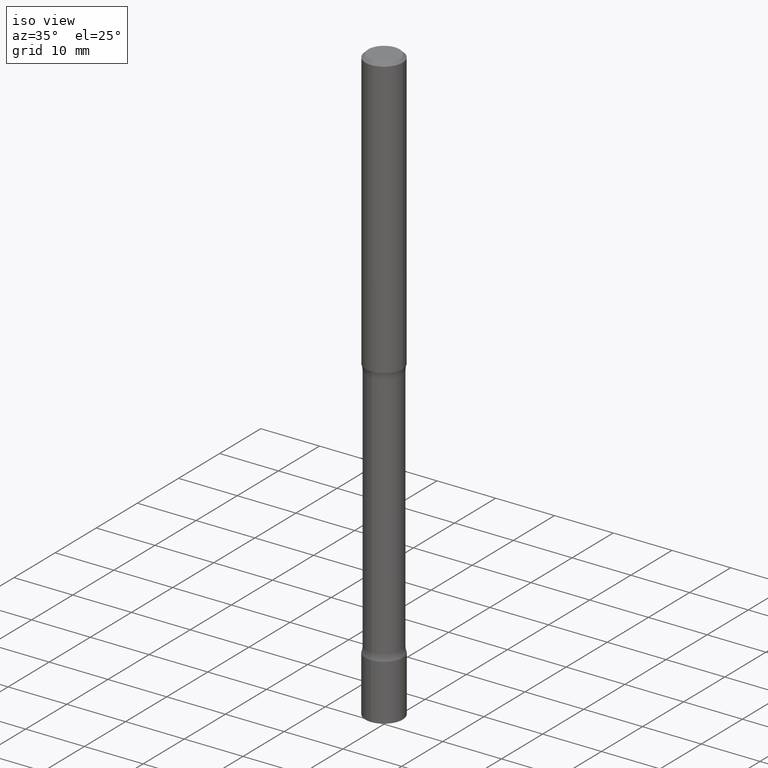
[diagram: clean part render]
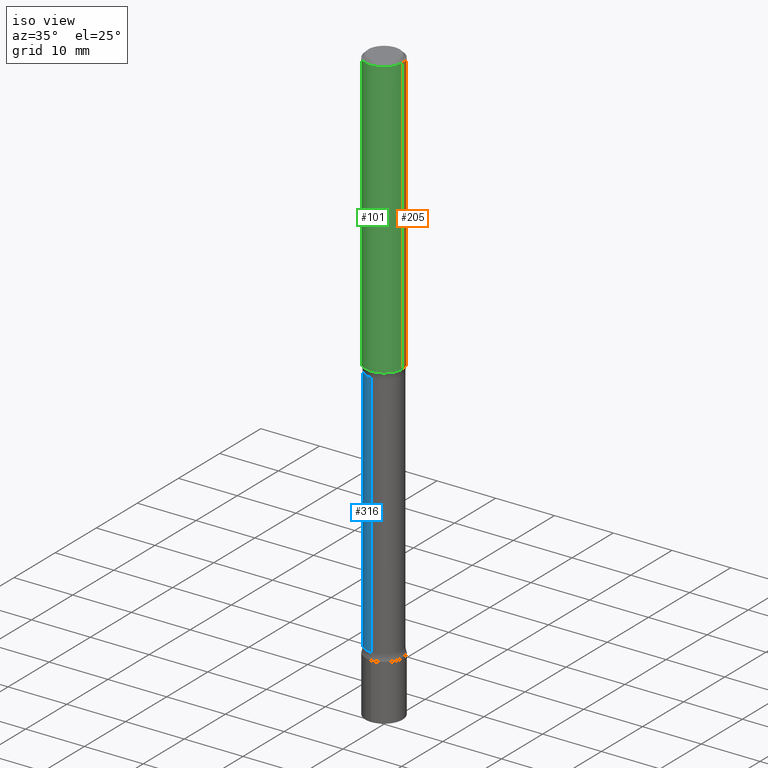
[diagram: same view with three faces highlighted in distinct colors, each labeled with its STEP entity id]
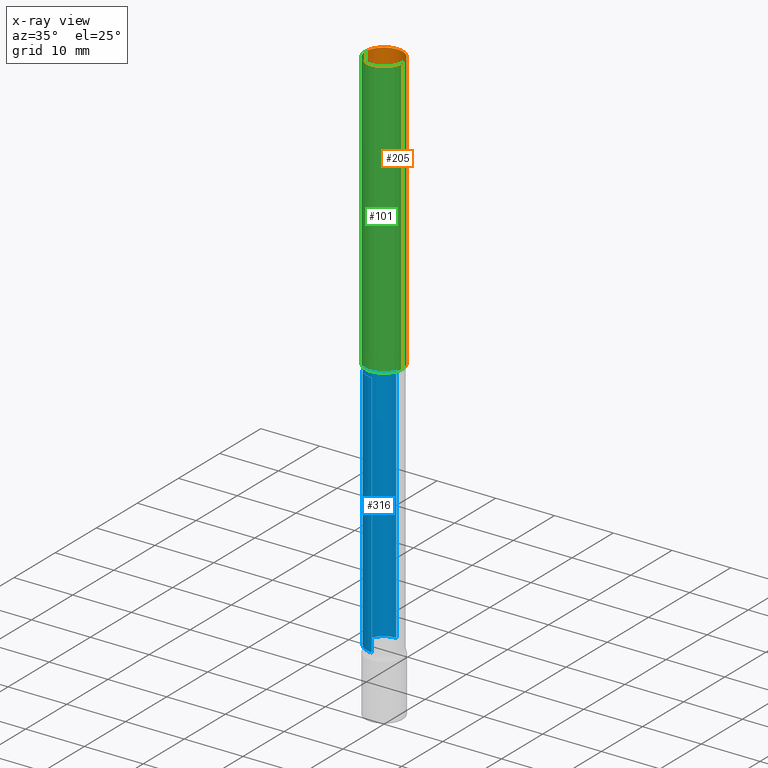
[diagram: x-ray of the same camera — body ghosted, the three highlighted faces saturated]
A machine part, iso view with three faces highlighted in distinct colors.
The next image is the same camera in x-ray (body ghosted, the three faces saturated) — at least one of them is partly hidden behind the body in this view.
Their STEP definitions:

[orange] entity #205 — the highlighted cylindrical surface (edge-blend (fillet) strip) has radius 3.175 mm, axis along (-0, 0, 1).
#10 = EDGE_LOOP ( 'NONE', ( #320, #204, #372, #96 ) ) ;
#17 = CARTESIAN_POINT ( 'NONE',  ( 4.890937612370273159E-31, -6.982962677686291609E-17, -0.02000000000000000042 ) ) ;
#28 = DIRECTION ( 'NONE',  ( -2.445468806185136877E-29, 3.491481338843145188E-15, 1.000000000000000000 ) ) ;
#35 = CARTESIAN_POINT ( 'NONE',  ( 0.1249999999999999029, -7.419397845041682046E-15, -1.875000000000000000 ) ) ;
#36 = EDGE_CURVE ( 'NONE', #236, #326, #209, .T. ) ;
#44 = VECTOR ( 'NONE', #28, 39.37007874015748143 ) ;
#49 = DIRECTION ( 'NONE',  ( 1.000000000000000000, -6.982962677686268288E-15, 0.000000000000000000 ) ) ;
#53 = CARTESIAN_POINT ( 'NONE',  ( -0.1249999999999995559, 8.030407079339172796E-16, -0.02000000000000000042 ) ) ;
#89 = EDGE_CURVE ( 'NONE', #129, #343, #485, .T. ) ;
#96 = ORIENTED_EDGE ( 'NONE', *, *, #36, .F. ) ;
#111 = AXIS2_PLACEMENT_3D ( 'NONE', #17, #281, #234 ) ;
#129 = VERTEX_POINT ( 'NONE', #300 ) ;
#181 = FACE_OUTER_BOUND ( 'NONE', #10, .T. ) ;
#183 = CARTESIAN_POINT ( 'NONE',  ( 0.000000000000000000, 0.000000000000000000, 0.000000000000000000 ) ) ;
#198 = CARTESIAN_POINT ( 'NONE',  ( -0.1249999999999997224, 8.881784197001232602E-16, -6.148668862818618915E-30 ) ) ;
#204 = ORIENTED_EDGE ( 'NONE', *, *, #89, .T. ) ;
#205 = ADVANCED_FACE ( 'NONE', ( #181 ), #465, .T. ) ;
#208 = CIRCLE ( 'NONE', #356, 0.1249999999999999029 ) ;
#209 = LINE ( 'NONE', #371, #44 ) ;
#230 = CARTESIAN_POINT ( 'NONE',  ( 0.1249999999999995559, -9.273918764983013908E-16, -0.02000000000000000042 ) ) ;
#234 = DIRECTION ( 'NONE',  ( 1.000000000000000000, -6.982962677686265922E-15, 0.000000000000000000 ) ) ;
#236 = VERTEX_POINT ( 'NONE', #35 ) ;
#250 = DIRECTION ( 'NONE',  ( -2.445468806185136597E-29, 3.491481338843145583E-15, 1.000000000000000000 ) ) ;
#257 = AXIS2_PLACEMENT_3D ( 'NONE', #183, #250, #508 ) ;
#281 = DIRECTION ( 'NONE',  ( -2.445468806185136597E-29, 3.491481338843145583E-15, 1.000000000000000000 ) ) ;
#295 = EDGE_CURVE ( 'NONE', #236, #129, #208, .T. ) ;
#300 = CARTESIAN_POINT ( 'NONE',  ( -0.1249999999999999029, -2.420000148853752220E-15, -1.875000000000000000 ) ) ;
#320 = ORIENTED_EDGE ( 'NONE', *, *, #295, .T. ) ;
#326 = VERTEX_POINT ( 'NONE', #230 ) ;
#343 = VERTEX_POINT ( 'NONE', #53 ) ;
#356 = AXIS2_PLACEMENT_3D ( 'NONE', #400, #396, #49 ) ;
#363 = DIRECTION ( 'NONE',  ( -2.445468806185136877E-29, 3.491481338843145188E-15, 1.000000000000000000 ) ) ;
#371 = CARTESIAN_POINT ( 'NONE',  ( 0.1249999999999997224, -8.728703347107813667E-16, 6.095220969744905728E-30 ) ) ;
#372 = ORIENTED_EDGE ( 'NONE', *, *, #501, .F. ) ;
#394 = VECTOR ( 'NONE', #363, 39.37007874015748143 ) ;
#396 = DIRECTION ( 'NONE',  ( -2.445468806185136597E-29, 3.491481338843145583E-15, 1.000000000000000000 ) ) ;
#400 = CARTESIAN_POINT ( 'NONE',  ( 4.585254011597131119E-29, -6.546527510330898707E-15, -1.875000000000000000 ) ) ;
#434 = CIRCLE ( 'NONE', #111, 0.1249999999999995559 ) ;
#465 = CYLINDRICAL_SURFACE ( 'NONE', #257, 0.1249999999999997224 ) ;
#485 = LINE ( 'NONE', #198, #394 ) ;
#501 = EDGE_CURVE ( 'NONE', #326, #343, #434, .T. ) ;
#508 = DIRECTION ( 'NONE',  ( 1.000000000000000000, -6.982962677686266711E-15, 4.876176775795935232E-29 ) ) ;

[blue] entity #316 — the highlighted cylindrical surface (edge-blend (fillet) strip) has radius 2.9845 mm, axis along (0, -0, -1).
#9 = CARTESIAN_POINT ( 'NONE',  ( 9.513849917074038221E-29, -1.434975285100415564E-14, -4.000000000000000000 ) ) ;
#24 = ORIENTED_EDGE ( 'NONE', *, *, #325, .T. ) ;
#34 = AXIS2_PLACEMENT_3D ( 'NONE', #361, #191, #351 ) ;
#43 = CARTESIAN_POINT ( 'NONE',  ( -8.061085147380546628E-16, -0.1175000000000136074, -3.999999999999999556 ) ) ;
#61 = ORIENTED_EDGE ( 'NONE', *, *, #472, .F. ) ;
#74 = DIRECTION ( 'NONE',  ( 6.982962677686265133E-15, 1.000000000000000000, -4.649954031768944672E-15 ) ) ;
#88 = CIRCLE ( 'NONE', #248, 0.1175000000000003542 ) ;
#92 = VERTEX_POINT ( 'NONE', #93 ) ;
#93 = CARTESIAN_POINT ( 'NONE',  ( 8.204981146282264856E-16, 0.1174999999999878642, -3.582353194726920265 ) ) ;
#125 = LINE ( 'NONE', #269, #507 ) ;
#160 = DIRECTION ( 'NONE',  ( 1.759171924570855496E-29, -4.474297534907476675E-15, -1.000000000000000000 ) ) ;
#161 = CIRCLE ( 'NONE', #34, 0.1174999999999981615 ) ;
#162 = FACE_OUTER_BOUND ( 'NONE', #495, .T. ) ;
#187 = VECTOR ( 'NONE', #437, 39.37007874015748143 ) ;
#191 = DIRECTION ( 'NONE',  ( 1.759171924570855496E-29, -4.474297534907476675E-15, -1.000000000000000000 ) ) ;
#248 = AXIS2_PLACEMENT_3D ( 'NONE', #464, #432, #74 ) ;
#261 = VERTEX_POINT ( 'NONE', #502 ) ;
#269 = CARTESIAN_POINT ( 'NONE',  ( 8.204981146282261897E-16, 0.1174999999999849221, -4.000000000000000888 ) ) ;
#270 = VERTEX_POINT ( 'NONE', #431 ) ;
#273 = ORIENTED_EDGE ( 'NONE', *, *, #443, .F. ) ;
#275 = CYLINDRICAL_SURFACE ( 'NONE', #395, 0.1174999999999992578 ) ;
#307 = EDGE_CURVE ( 'NONE', #362, #261, #161, .T. ) ;
#316 = ADVANCED_FACE ( 'NONE', ( #162 ), #275, .T. ) ;
#325 = EDGE_CURVE ( 'NONE', #261, #92, #125, .T. ) ;
#351 = DIRECTION ( 'NONE',  ( 6.982962677686265922E-15, 1.000000000000000000, -4.649954031769031446E-15 ) ) ;
#361 = CARTESIAN_POINT ( 'NONE',  ( 5.850632639870013591E-29, -5.032685085030794996E-15, -1.917646805273080624 ) ) ;
#362 = VERTEX_POINT ( 'NONE', #483 ) ;
#392 = LINE ( 'NONE', #43, #187 ) ;
#395 = AXIS2_PLACEMENT_3D ( 'NONE', #9, #160, #442 ) ;
#431 = CARTESIAN_POINT ( 'NONE',  ( -8.318353822297121609E-16, -0.1175000000000128303, -3.582353194726918932 ) ) ;
#432 = DIRECTION ( 'NONE',  ( 1.759171924570855496E-29, -4.474297534907476675E-15, -1.000000000000000000 ) ) ;
#437 = DIRECTION ( 'NONE',  ( 1.759171924570855496E-29, -4.474297534907476675E-15, -1.000000000000000000 ) ) ;
#442 = DIRECTION ( 'NONE',  ( 6.982962677686266711E-15, 1.000000000000000000, -4.649954031768988059E-15 ) ) ;
#443 = EDGE_CURVE ( 'NONE', #362, #270, #392, .T. ) ;
#444 = DIRECTION ( 'NONE',  ( 1.759171924570855496E-29, -4.474297534907476675E-15, -1.000000000000000000 ) ) ;
#464 = CARTESIAN_POINT ( 'NONE',  ( 8.779137382850924251E-29, -1.248107677970883248E-14, -3.582353194726919821 ) ) ;
#472 = EDGE_CURVE ( 'NONE', #270, #92, #88, .T. ) ;
#478 = ORIENTED_EDGE ( 'NONE', *, *, #307, .T. ) ;
#483 = CARTESIAN_POINT ( 'NONE',  ( -8.318353822297277409E-16, -0.1175000000000032269, -1.917646805273080179 ) ) ;
#495 = EDGE_LOOP ( 'NONE', ( #273, #478, #24, #61 ) ) ;
#502 = CARTESIAN_POINT ( 'NONE',  ( 8.204981146281819149E-16, 0.1174999999999931238, -1.917646805273081290 ) ) ;
#507 = VECTOR ( 'NONE', #444, 39.37007874015748143 ) ;

[green] entity #101 — the highlighted cylindrical surface (edge-blend (fillet) strip) has radius 3.175 mm, axis along (-0, 0, 1).
#28 = DIRECTION ( 'NONE',  ( -2.445468806185136877E-29, 3.491481338843145188E-15, 1.000000000000000000 ) ) ;
#29 = EDGE_CURVE ( 'NONE', #129, #236, #77, .T. ) ;
#35 = CARTESIAN_POINT ( 'NONE',  ( 0.1249999999999999029, -7.419397845041682046E-15, -1.875000000000000000 ) ) ;
#36 = EDGE_CURVE ( 'NONE', #236, #326, #209, .T. ) ;
#44 = VECTOR ( 'NONE', #28, 39.37007874015748143 ) ;
#47 = EDGE_LOOP ( 'NONE', ( #94, #173, #446, #243 ) ) ;
#51 = FACE_OUTER_BOUND ( 'NONE', #47, .T. ) ;
#53 = CARTESIAN_POINT ( 'NONE',  ( -0.1249999999999995559, 8.030407079339172796E-16, -0.02000000000000000042 ) ) ;
#70 = AXIS2_PLACEMENT_3D ( 'NONE', #167, #235, #136 ) ;
#71 = DIRECTION ( 'NONE',  ( -2.445468806185136597E-29, 3.491481338843145583E-15, 1.000000000000000000 ) ) ;
#77 = CIRCLE ( 'NONE', #70, 0.1249999999999999029 ) ;
#89 = EDGE_CURVE ( 'NONE', #129, #343, #485, .T. ) ;
#94 = ORIENTED_EDGE ( 'NONE', *, *, #89, .F. ) ;
#101 = ADVANCED_FACE ( 'NONE', ( #51 ), #271, .T. ) ;
#129 = VERTEX_POINT ( 'NONE', #300 ) ;
#136 = DIRECTION ( 'NONE',  ( 1.000000000000000000, -6.982962677686268288E-15, 0.000000000000000000 ) ) ;
#167 = CARTESIAN_POINT ( 'NONE',  ( 4.585254011597131119E-29, -6.546527510330898707E-15, -1.875000000000000000 ) ) ;
#173 = ORIENTED_EDGE ( 'NONE', *, *, #29, .T. ) ;
#198 = CARTESIAN_POINT ( 'NONE',  ( -0.1249999999999997224, 8.881784197001232602E-16, -6.148668862818618915E-30 ) ) ;
#209 = LINE ( 'NONE', #371, #44 ) ;
#217 = DIRECTION ( 'NONE',  ( 1.000000000000000000, -6.982962677686265922E-15, 0.000000000000000000 ) ) ;
#220 = AXIS2_PLACEMENT_3D ( 'NONE', #252, #71, #217 ) ;
#230 = CARTESIAN_POINT ( 'NONE',  ( 0.1249999999999995559, -9.273918764983013908E-16, -0.02000000000000000042 ) ) ;
#235 = DIRECTION ( 'NONE',  ( -2.445468806185136597E-29, 3.491481338843145583E-15, 1.000000000000000000 ) ) ;
#236 = VERTEX_POINT ( 'NONE', #35 ) ;
#243 = ORIENTED_EDGE ( 'NONE', *, *, #259, .F. ) ;
#252 = CARTESIAN_POINT ( 'NONE',  ( 4.890937612370273159E-31, -6.982962677686291609E-17, -0.02000000000000000042 ) ) ;
#259 = EDGE_CURVE ( 'NONE', #343, #326, #454, .T. ) ;
#271 = CYLINDRICAL_SURFACE ( 'NONE', #296, 0.1249999999999997224 ) ;
#277 = DIRECTION ( 'NONE',  ( 1.000000000000000000, -6.982962677686266711E-15, 4.876176775795935232E-29 ) ) ;
#296 = AXIS2_PLACEMENT_3D ( 'NONE', #321, #368, #277 ) ;
#300 = CARTESIAN_POINT ( 'NONE',  ( -0.1249999999999999029, -2.420000148853752220E-15, -1.875000000000000000 ) ) ;
#321 = CARTESIAN_POINT ( 'NONE',  ( 0.000000000000000000, 0.000000000000000000, 0.000000000000000000 ) ) ;
#326 = VERTEX_POINT ( 'NONE', #230 ) ;
#343 = VERTEX_POINT ( 'NONE', #53 ) ;
#363 = DIRECTION ( 'NONE',  ( -2.445468806185136877E-29, 3.491481338843145188E-15, 1.000000000000000000 ) ) ;
#368 = DIRECTION ( 'NONE',  ( -2.445468806185136597E-29, 3.491481338843145583E-15, 1.000000000000000000 ) ) ;
#371 = CARTESIAN_POINT ( 'NONE',  ( 0.1249999999999997224, -8.728703347107813667E-16, 6.095220969744905728E-30 ) ) ;
#394 = VECTOR ( 'NONE', #363, 39.37007874015748143 ) ;
#446 = ORIENTED_EDGE ( 'NONE', *, *, #36, .T. ) ;
#454 = CIRCLE ( 'NONE', #220, 0.1249999999999995559 ) ;
#485 = LINE ( 'NONE', #198, #394 ) ;